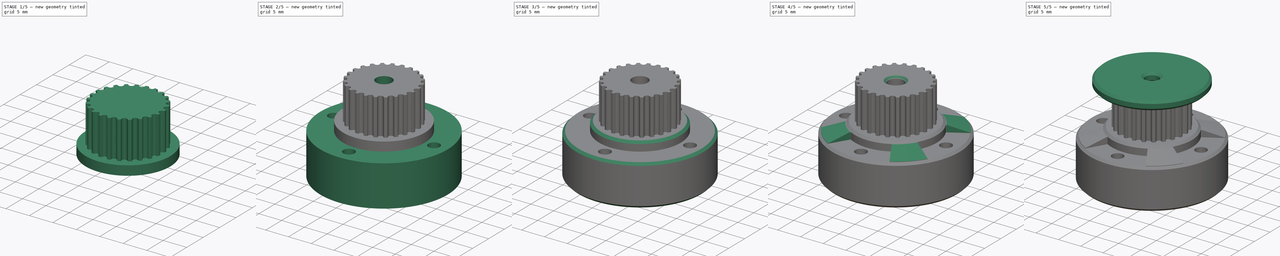
[diagram: build sequence overview — one tinted view per stage of 5, left to right]
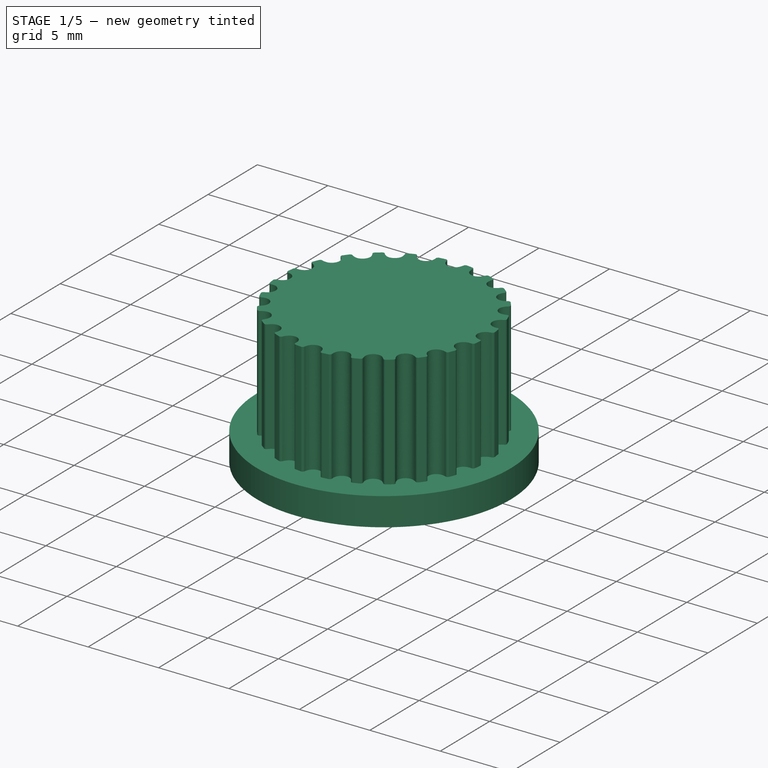
[diagram: stage 1 of 5 — iso view after this stage's code; geometry added in this stage tinted green]
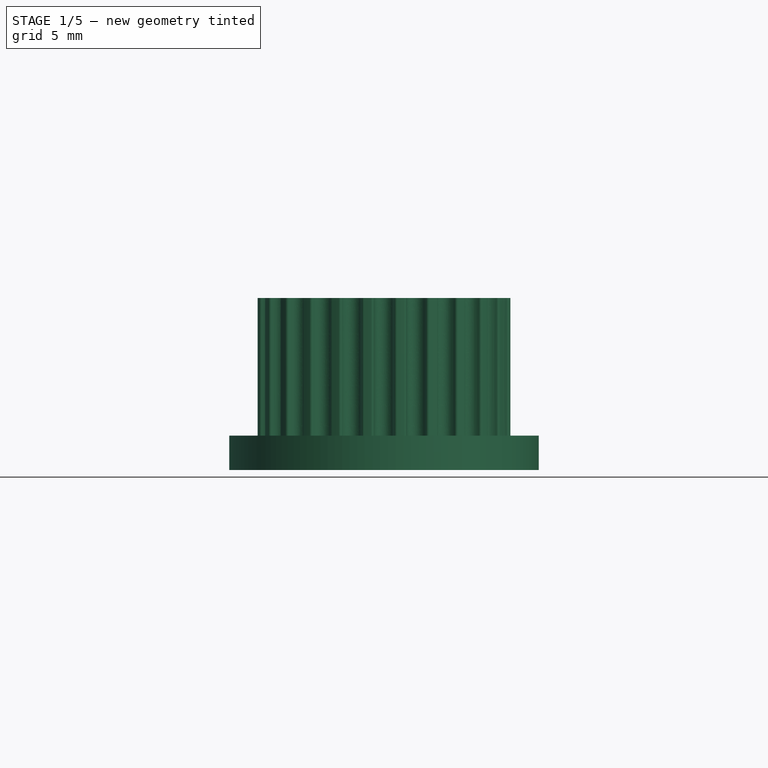
[diagram: stage 1 of 5 — front view after this stage's code; geometry added in this stage tinted green]
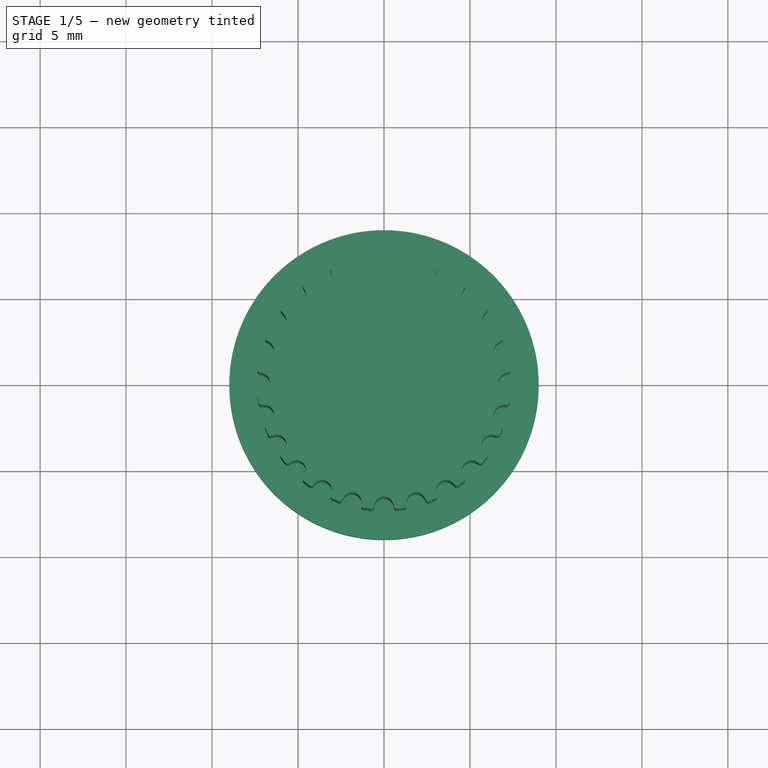
[diagram: stage 1 of 5 — top view after this stage's code; geometry added in this stage tinted green]
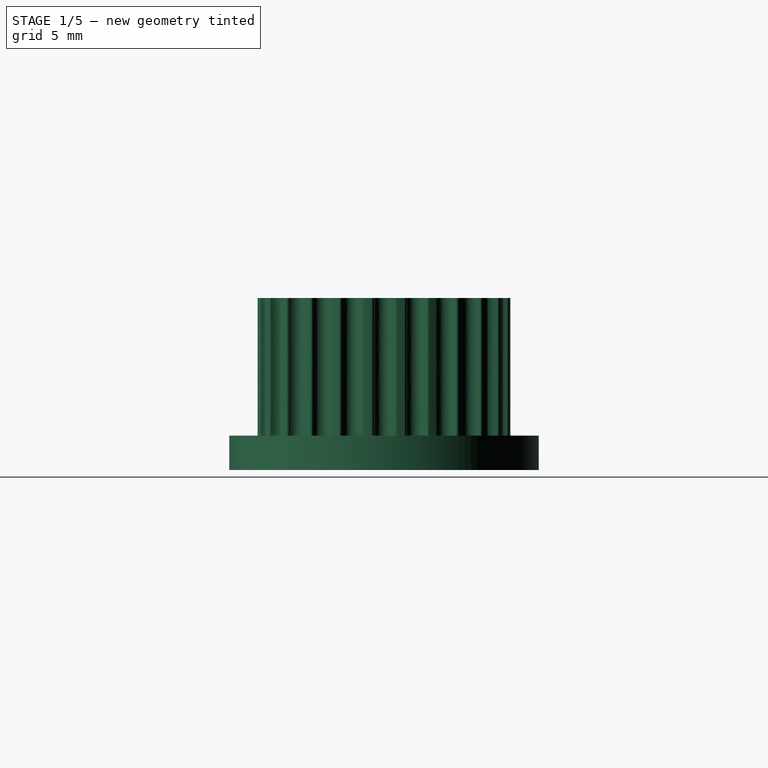
[diagram: stage 1 of 5 — right view after this stage's code; geometry added in this stage tinted green]
FCSTD DOCUMENT  (FreeCAD 1.0R39109 (Git))
Label: gt2_24T_pulley_open_to_double
License: All rights reserved
LicenseURL: https://en.wikipedia.org/wiki/All_rights_reserved
objects: Sketcher::SketchObject×8, PartDesign::Chamfer×7, PartDesign::Pad×4, PartDesign::Pocket×4, PartDesign::Body×2, Part::FeaturePython×1, PartDesign::FeatureBase×1, PartDesign::ShapeBinder×1, App::Part×1, Measure::MeasureArea×1, App::DocumentObjectGroup×1
note: 67 computed .brp shape members not serialized (recipe doc carries the construction recipe); baked Part::Feature solids carry a one-line shape summary decoded from their .brp

FEATURE [Part::FeaturePython] TimingGear  # WARN: FeaturePython — macro-defined, semantics opaque (R4)
  AttacherType = Attacher::AttachEngine3D
  h = 0.75
  height = 8
  num_teeth = 24
  offset = 0.4
  pitch = 2
  r0 = 0.555
  r1 = 1
  rs = 0.15
  type = 0
  u = 0.254
  version = 1.3.0
FEATURE [PartDesign::FeatureBase] BaseFeature
  BaseFeature = -> TimingGear
  Suppressed = false
FEATURE [Sketcher::SketchObject] Sketch
  ArcFitTolerance = 1e-06
  AttachmentSupport = -> [BaseFeature]
  FullyConstrained = true
  MakeInternals = false
  MapMode = 5
  Placement = pos=(0,0,0) rot=(1,0,0;3.14159rad)
  sketch-geometry (1):
    g0: Circle CenterX=0 CenterY=0 CenterZ=0 NormalX=0 NormalY=0 NormalZ=1 AngleXU=0 Radius=9
  constraints (2):
    c: Diameter(g0) = 18
    c: Coincident(g0,g-1)
FEATURE [PartDesign::Pad] Pad
  BaseFeature = -> BaseFeature
  Direction = (0,0,-1)
  Length = 2
  Length2 = 10
  Profile = -> Sketch
  ReferenceAxis = -> Sketch [N_Axis]
  Refine = true
  Suppressed = false
  Type = 0
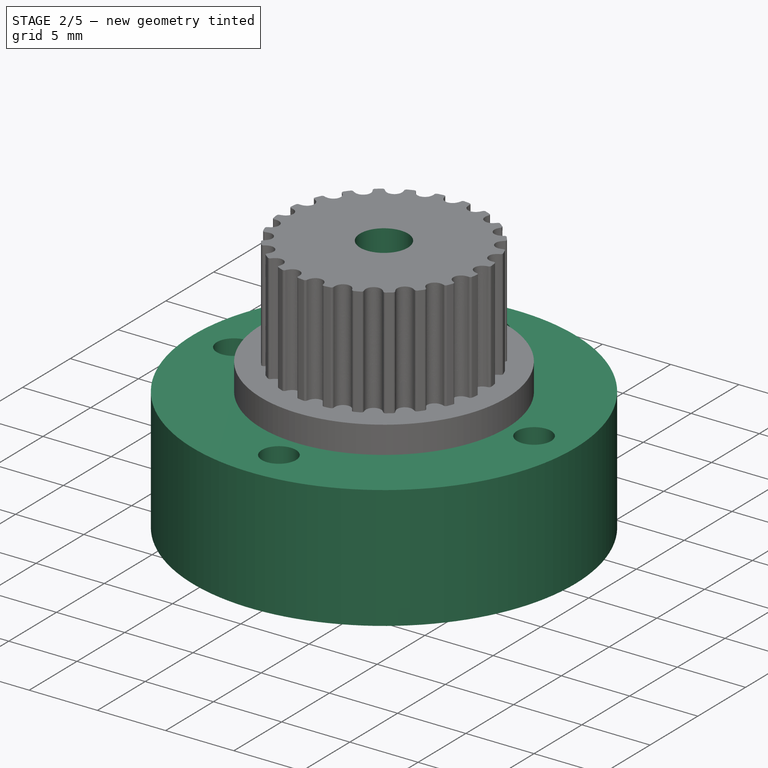
[diagram: stage 2 of 5 — iso view after this stage's code; geometry added in this stage tinted green]
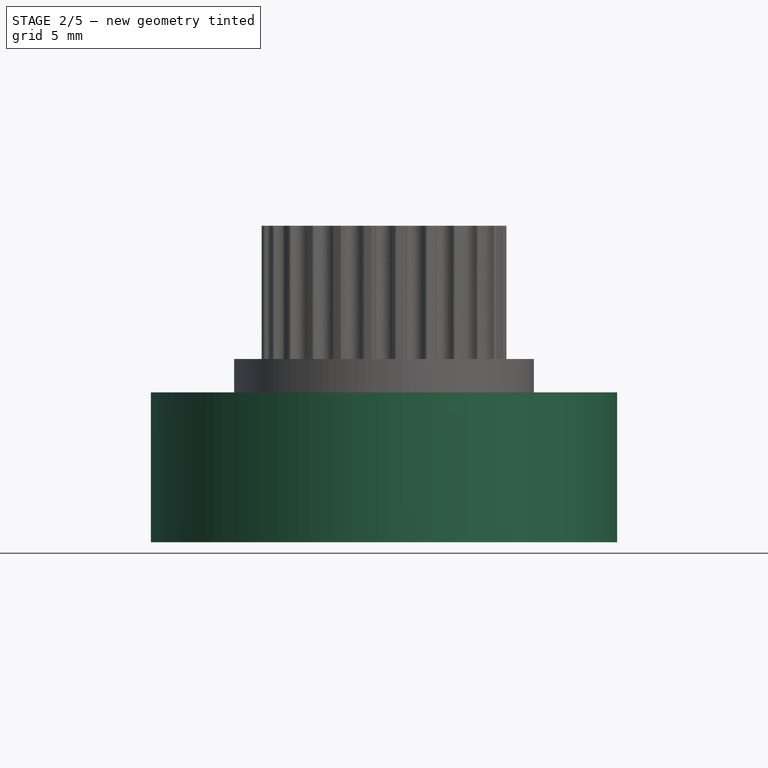
[diagram: stage 2 of 5 — front view after this stage's code; geometry added in this stage tinted green]
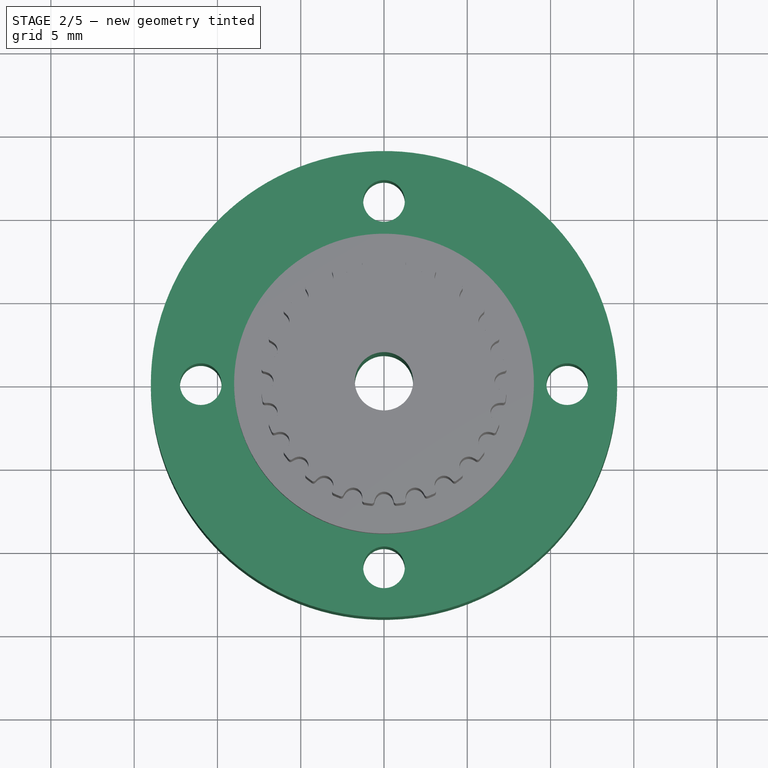
[diagram: stage 2 of 5 — top view after this stage's code; geometry added in this stage tinted green]
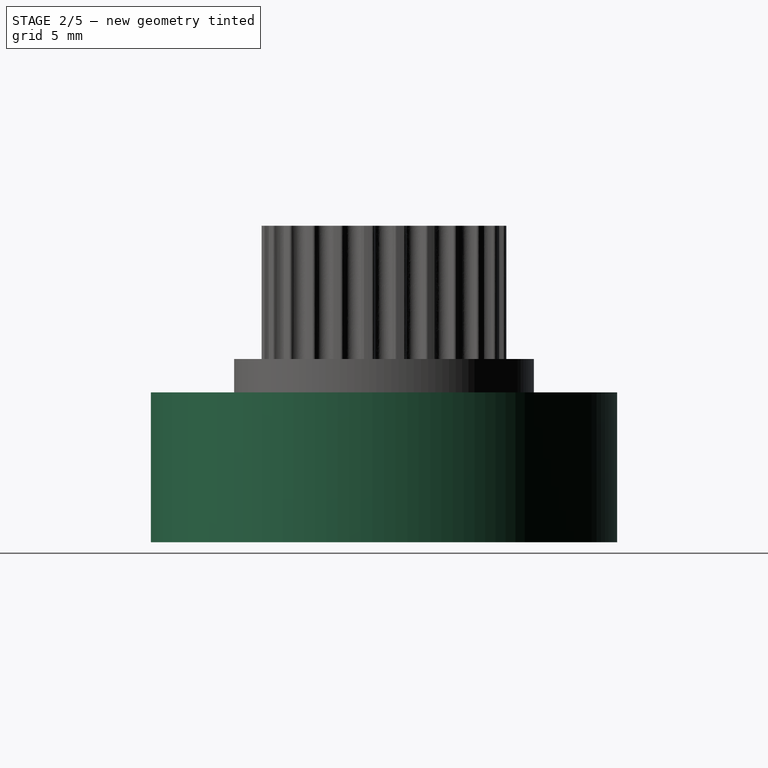
[diagram: stage 2 of 5 — right view after this stage's code; geometry added in this stage tinted green]
FEATURE [Sketcher::SketchObject] Sketch001
  ArcFitTolerance = 1e-06
  AttachmentSupport = -> [Pad]
  FullyConstrained = true
  MakeInternals = false
  MapMode = 5
  Placement = pos=(0,0,-2) rot=(1,0,0;3.14159rad)
  sketch-geometry (1):
    g0: Circle CenterX=0 CenterY=0 CenterZ=0 NormalX=0 NormalY=0 NormalZ=1 AngleXU=0 Radius=14
  constraints (2):
    c: Diameter(g0) = 28
    c: Coincident(g0,g-1)
FEATURE [PartDesign::Pad] Pad001
  BaseFeature = -> Pad
  Direction = (0,0,-1)
  Length = 9
  Length2 = 10
  Profile = -> Sketch001
  ReferenceAxis = -> Sketch001 [N_Axis]
  Refine = true
  Suppressed = false
  Type = 0
FEATURE [Sketcher::SketchObject] Sketch002
  ArcFitTolerance = 1e-06
  AttachmentSupport = -> [Pad001]
  FullyConstrained = false
  MakeInternals = false
  MapMode = 5
  Placement = pos=(0,0,-11) rot=(1,0,0;3.14159rad)
  sketch-geometry (7):
    g0: Circle [constr] CenterX=0 CenterY=5.078e-13 CenterZ=0 NormalX=0 NormalY=0 NormalZ=1 AngleXU=0 Radius=11
    g1: LineSegment [constr] StartX=0 StartY=5.078e-13 StartZ=0 EndX=0 EndY=11 EndZ=0
    g2: Circle CenterX=0 CenterY=11 CenterZ=0 NormalX=0 NormalY=0 NormalZ=1 AngleXU=0 Radius=5.092e-13
    g3: Circle CenterX=0 CenterY=11 CenterZ=0 NormalX=0 NormalY=0 NormalZ=1 AngleXU=0 Radius=1.25
    g4: Circle CenterX=-11 CenterY=0 CenterZ=0 NormalX=0 NormalY=0 NormalZ=1 AngleXU=0 Radius=1.25
    g5: Circle CenterX=0 CenterY=-11 CenterZ=0 NormalX=0 NormalY=0 NormalZ=1 AngleXU=0 Radius=1.25
    g6: Circle CenterX=11 CenterY=0 CenterZ=0 NormalX=0 NormalY=0 NormalZ=1 AngleXU=0 Radius=1.25
  constraints (12):
    c: Diameter(g0) = 22
    c: Coincident(g0,g-1)
    c: Coincident(g1,g0)
    c: PointOnObject(g1,g0)
    c: Vertical(g1)
    c: Coincident(g2,g1)
    c: Tangent(g2,g0)
    c: Coincident(g3,g1)
    c: Diameter(g3) = 2.5
    c: Diameter(g4) = 2.5
    c: Diameter(g5) = 2.5
    c: Diameter(g6) = 2.5
FEATURE [PartDesign::Pocket] Pocket
  BaseFeature = -> Pad001
  Direction = (0,0,1)
  Length = 19
  Length2 = 5
  Profile = -> Sketch002
  ReferenceAxis = -> Sketch002 [N_Axis]
  Refine = true
  Suppressed = false
  Type = 0
FEATURE [Sketcher::SketchObject] Sketch003
  ArcFitTolerance = 1e-06
  AttachmentSupport = -> [Pocket]
  FullyConstrained = true
  MakeInternals = false
  MapMode = 5
  Placement = pos=(0,0,-11) rot=(1,0,0;3.14159rad)
  sketch-geometry (1):
    g0: Circle CenterX=0 CenterY=0 CenterZ=0 NormalX=0 NormalY=0 NormalZ=1 AngleXU=0 Radius=6
  constraints (2):
    c: Coincident(g0,g-1)
    c: Diameter(g0) = 12
FEATURE [PartDesign::Pocket] Pocket001
  BaseFeature = -> Pocket
  Direction = (0,0,1)
  Length = 5
  Length2 = 5
  Profile = -> Sketch003
  ReferenceAxis = -> Sketch003 [N_Axis]
  Refine = true
  Suppressed = false
  Type = 0
FEATURE [Sketcher::SketchObject] Sketch004
  ArcFitTolerance = 1e-06
  AttachmentSupport = -> [Pocket001]
  FullyConstrained = true
  MakeInternals = false
  MapMode = 5
  Placement = pos=(0,0,-6) rot=(1,0,0;3.14159rad)
  sketch-geometry (1):
    g0: Circle CenterX=0 CenterY=0 CenterZ=0 NormalX=0 NormalY=0 NormalZ=1 AngleXU=0 Radius=1.75
  constraints (2):
    c: Coincident(g0,g-1)
    c: Diameter(g0) = 3.5
FEATURE [PartDesign::Pocket] Pocket002
  BaseFeature = -> Pocket001
  Direction = (0,0,1)
  Length = 20
  Length2 = 5
  Profile = -> Sketch004
  ReferenceAxis = -> Sketch004 [N_Axis]
  Refine = true
  Suppressed = false
  Type = 0
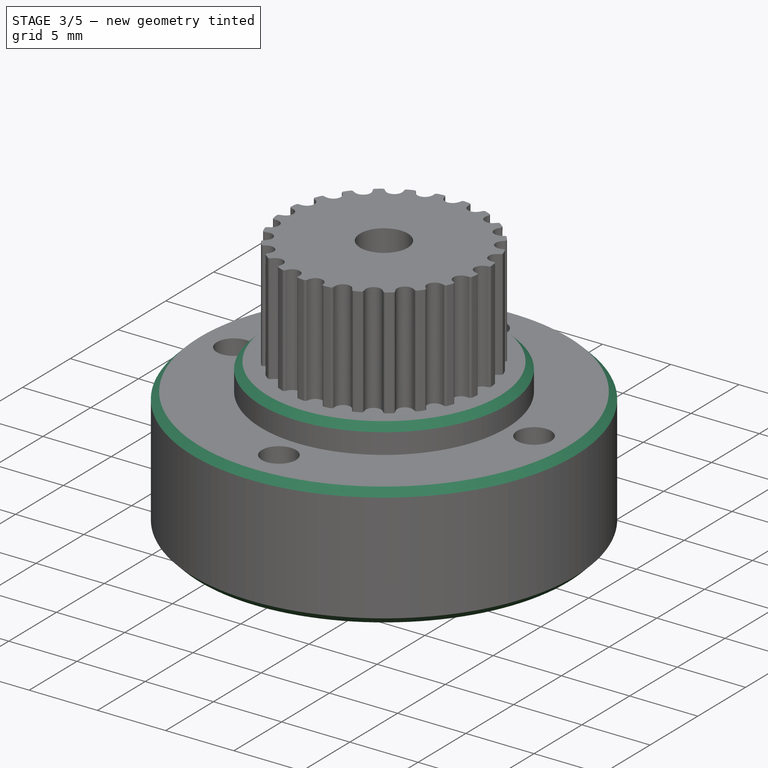
[diagram: stage 3 of 5 — iso view after this stage's code; geometry added in this stage tinted green]
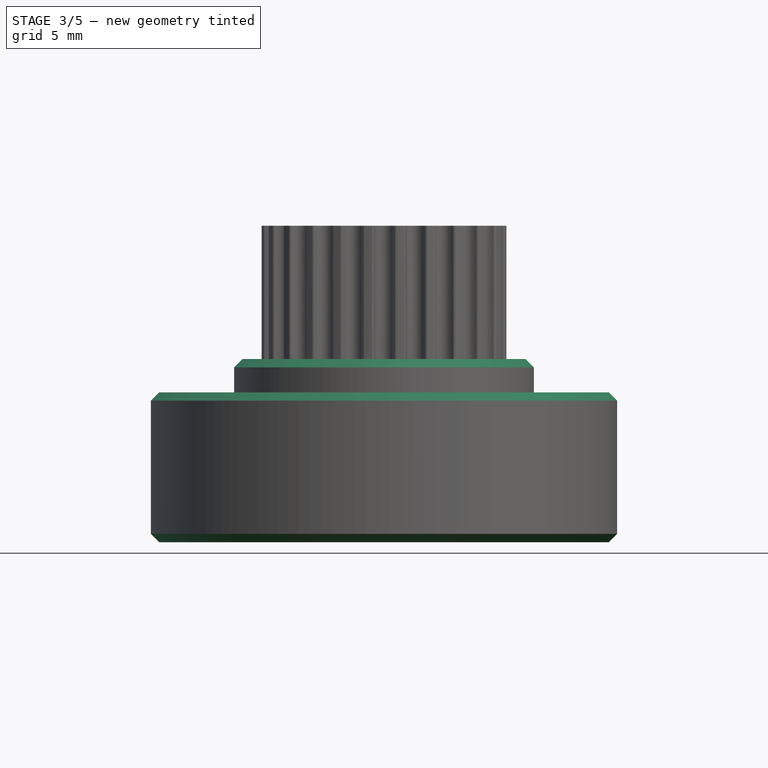
[diagram: stage 3 of 5 — front view after this stage's code; geometry added in this stage tinted green]
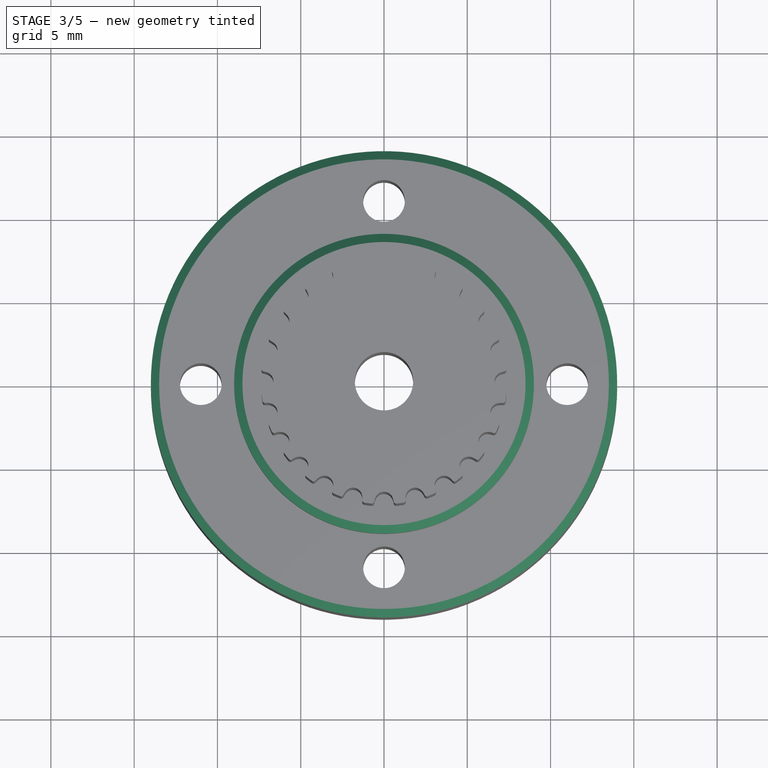
[diagram: stage 3 of 5 — top view after this stage's code; geometry added in this stage tinted green]
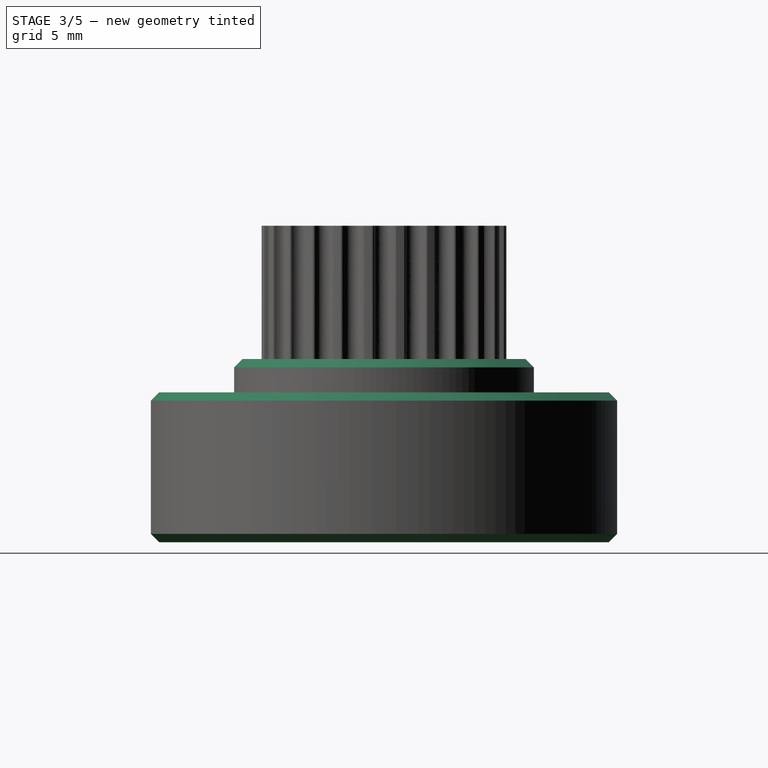
[diagram: stage 3 of 5 — right view after this stage's code; geometry added in this stage tinted green]
FEATURE [PartDesign::Chamfer] Chamfer
  Angle = 45
  Base = -> Pocket002 [Edge437]
  BaseFeature = -> Pocket002
  ChamferType = 0
  FlipDirection = false
  Refine = true
  Size = 4.2
  Size2 = 1
  SupportTransform = false
  Suppressed = false
  UseAllEdges = false
FEATURE [PartDesign::Chamfer] Chamfer001
  Angle = 45
  Base = -> Chamfer [Edge441]
  BaseFeature = -> Chamfer
  ChamferType = 0
  FlipDirection = false
  Refine = true
  Size = 0.5
  Size2 = 1
  SupportTransform = false
  Suppressed = false
  UseAllEdges = false
FEATURE [PartDesign::Chamfer] Chamfer002
  Angle = 45
  Base = -> Chamfer001 [Edge439,Edge447]
  BaseFeature = -> Chamfer001
  ChamferType = 0
  FlipDirection = false
  Refine = true
  Size = 0.5
  Size2 = 1
  SupportTransform = false
  Suppressed = false
  UseAllEdges = false
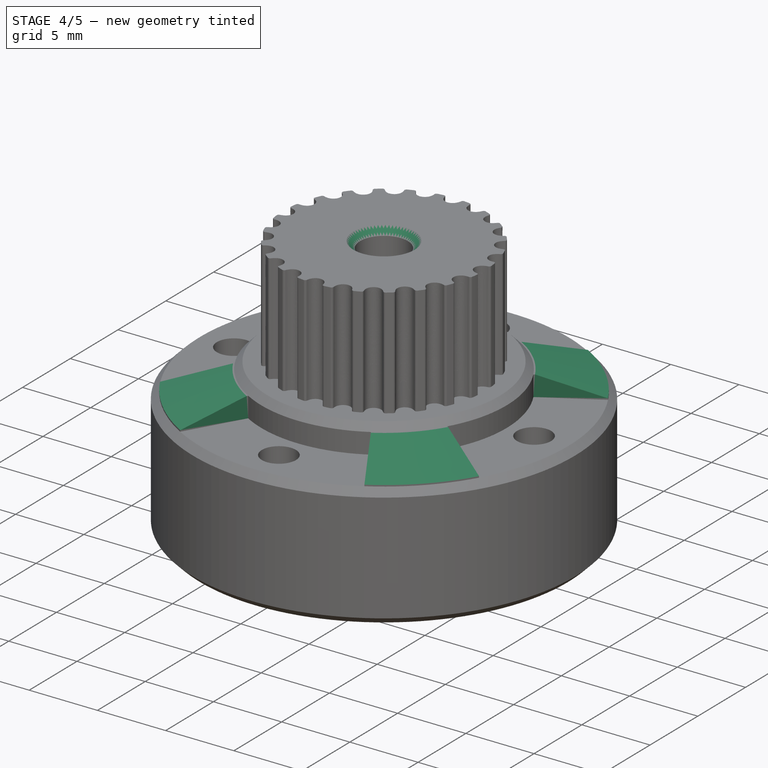
[diagram: stage 4 of 5 — iso view after this stage's code; geometry added in this stage tinted green]
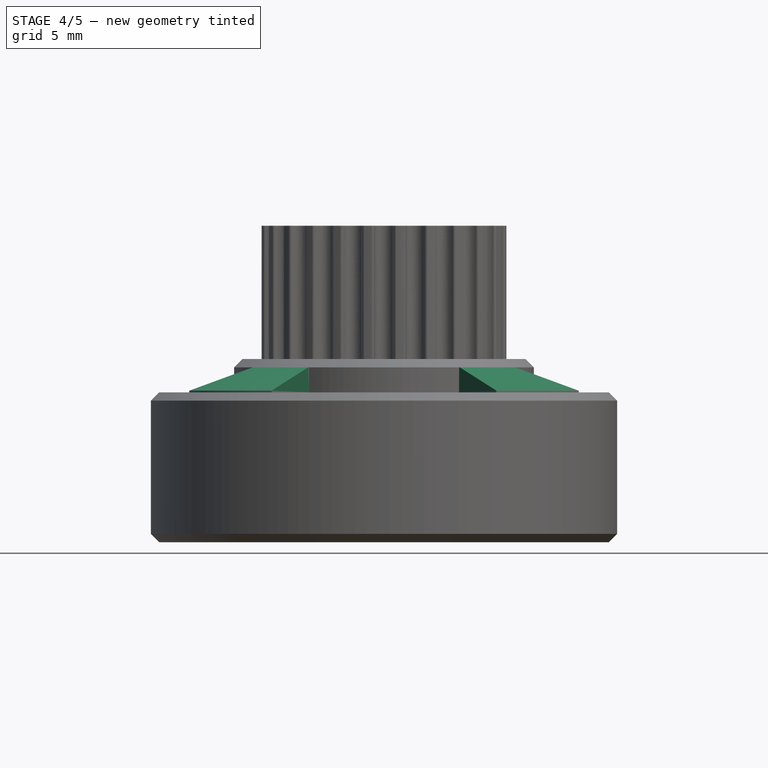
[diagram: stage 4 of 5 — front view after this stage's code; geometry added in this stage tinted green]
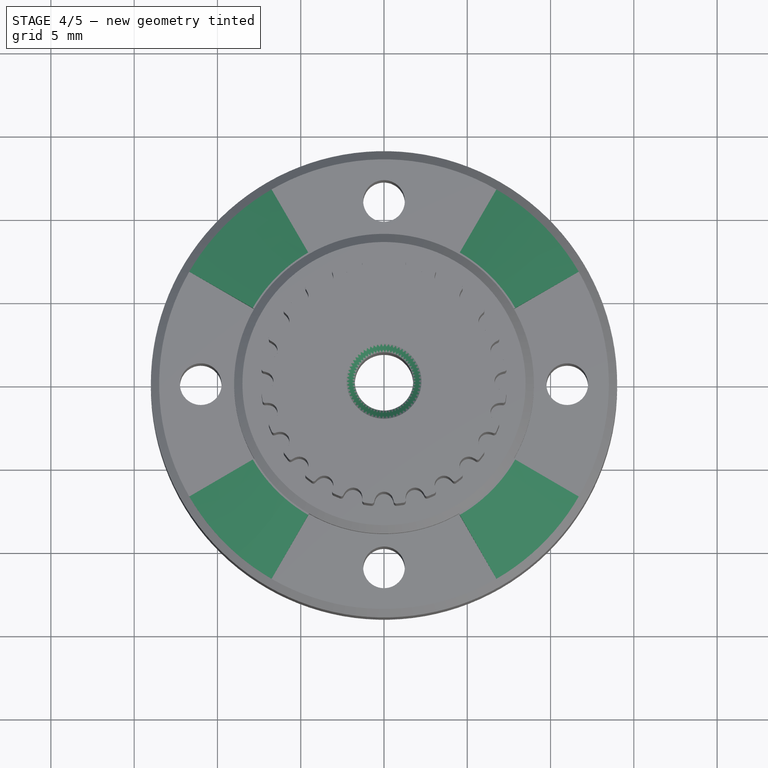
[diagram: stage 4 of 5 — top view after this stage's code; geometry added in this stage tinted green]
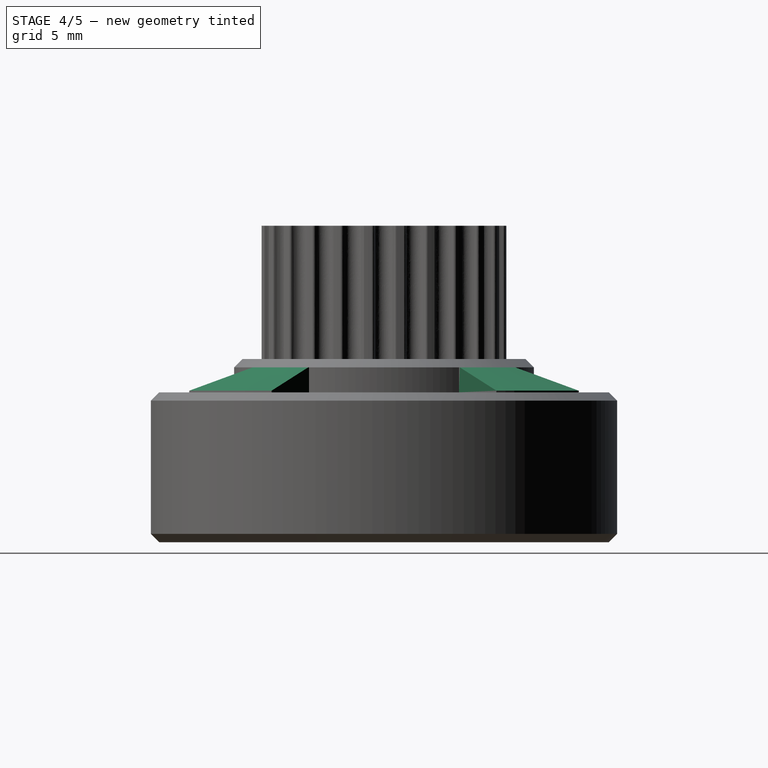
[diagram: stage 4 of 5 — right view after this stage's code; geometry added in this stage tinted green]
FEATURE [PartDesign::Chamfer] Chamfer003
  Angle = 45
  Base = -> Chamfer002 [Edge22,Edge15,Edge17,Edge15,Edge9,Edge11]
  BaseFeature = -> Chamfer002
  ChamferType = 0
  FlipDirection = false
  Refine = true
  Size = 0.5
  Size2 = 1
  SupportTransform = false
  Suppressed = false
  UseAllEdges = false
FEATURE [PartDesign::Chamfer] Chamfer004
  Angle = 45
  Base = -> Chamfer003 [Edge473]
  BaseFeature = -> Chamfer003
  ChamferType = 0
  FlipDirection = false
  Refine = true
  Size = 0.5
  Size2 = 1
  SupportTransform = false
  Suppressed = false
  UseAllEdges = false
FEATURE [PartDesign::Body] Body001
  AllowCompound = false
  Group = -> [CopyChamfer004,Sketch005,Pad002,Sketch006,Pocket003,Chamfer005]
  Origin = -> Origin001
  Tip = -> Chamfer005
FEATURE [Sketcher::SketchObject] Sketch007
  ArcFitTolerance = 1e-06
  AttachmentSupport = -> [Chamfer004]
  ExternalGeometry = -> [Chamfer004]
  FullyConstrained = true
  MakeInternals = false
  MapMode = 5
  Placement = pos=(0,0,-2) rot=(0,0,1;0rad)
  sketch-geometry (25):
    g0: Circle [constr] CenterX=0 CenterY=0 CenterZ=0 NormalX=0 NormalY=0 NormalZ=1 AngleXU=0 Radius=9
    g1: LineSegment [constr] StartX=0 StartY=0 StartZ=0 EndX=7.79423 EndY=-4.5 EndZ=0
    g2: LineSegment [constr] StartX=0 StartY=0 StartZ=0 EndX=4.5 EndY=-7.79423 EndZ=0
    g3: LineSegment StartX=7.79423 StartY=-4.5 StartZ=0 EndX=11.6913 EndY=-6.75 EndZ=0
    g4: LineSegment StartX=4.5 StartY=-7.79423 StartZ=0 EndX=6.75 EndY=-11.6913 EndZ=0
    g5: LineSegment [constr] StartX=0 StartY=0 StartZ=0 EndX=7.79423 EndY=4.5 EndZ=0
    g6: LineSegment [constr] StartX=0 StartY=0 StartZ=0 EndX=4.5 EndY=7.79423 EndZ=0
    g7: LineSegment [constr] StartX=0 StartY=0 StartZ=0 EndX=-4.5 EndY=7.79423 EndZ=0
    g8: LineSegment [constr] StartX=0 StartY=0 StartZ=0 EndX=-7.79423 EndY=4.5 EndZ=0
    g9: LineSegment [constr] StartX=0 StartY=0 StartZ=0 EndX=-7.79423 EndY=-4.5 EndZ=0
    g10: LineSegment [constr] StartX=0 StartY=0 StartZ=0 EndX=-4.5 EndY=-7.79423 EndZ=0
    g11: LineSegment StartX=7.79423 StartY=4.5 StartZ=0 EndX=11.6913 EndY=6.75 EndZ=0
    g12: LineSegment StartX=4.5 StartY=7.79423 StartZ=0 EndX=6.75 EndY=11.6913 EndZ=0
    g13: LineSegment StartX=-4.5 StartY=7.79423 StartZ=0 EndX=-6.75 EndY=11.6913 EndZ=0
    g14: LineSegment StartX=-7.79423 StartY=4.5 StartZ=0 EndX=-11.6913 EndY=6.75 EndZ=0
    g15: LineSegment StartX=-7.79423 StartY=-4.5 StartZ=0 EndX=-11.6913 EndY=-6.75 EndZ=0
    g16: LineSegment StartX=-4.5 StartY=-7.79423 StartZ=0 EndX=-6.75 EndY=-11.6913 EndZ=0
    g17: ArcOfCircle CenterX=0 CenterY=0 CenterZ=0 NormalX=0 NormalY=0 NormalZ=1 AngleXU=0 Radius=9 StartAngle=0.523599 EndAngle=1.0472
    g18: ArcOfCircle CenterX=0 CenterY=0 CenterZ=0 NormalX=0 NormalY=0 NormalZ=1 AngleXU=0 Radius=9 StartAngle=2.0944 EndAngle=2.61799
    g19: ArcOfCircle CenterX=0 CenterY=0 CenterZ=0 NormalX=0 NormalY=0 NormalZ=1 AngleXU=0 Radius=9 StartAngle=3.66519 EndAngle=4.18879
    g20: ArcOfCircle CenterX=0 CenterY=0 CenterZ=0 NormalX=0 NormalY=0 NormalZ=1 AngleXU=0 Radius=9 StartAngle=5.23599 EndAngle=5.75959
    g21: ArcOfCircle CenterX=0 CenterY=0 CenterZ=0 NormalX=0 NormalY=0 NormalZ=1 AngleXU=0 Radius=13.5 StartAngle=0.523599 EndAngle=1.0472
    g22: ArcOfCircle CenterX=0 CenterY=0 CenterZ=0 NormalX=0 NormalY=0 NormalZ=1 AngleXU=0 Radius=13.5 StartAngle=2.0944 EndAngle=2.61799
    g23: ArcOfCircle CenterX=0 CenterY=0 CenterZ=0 NormalX=0 NormalY=0 NormalZ=1 AngleXU=0 Radius=13.5 StartAngle=3.66519 EndAngle=4.18879
    g24: ArcOfCircle CenterX=0 CenterY=0 CenterZ=0 NormalX=0 NormalY=0 NormalZ=1 AngleXU=0 Radius=13.5 StartAngle=5.23599 EndAngle=5.75959
  constraints (80):
    c: Coincident(g0,g-1)
    c: Diameter(g0) = 18
    c: Coincident(g1,g0)
    c: PointOnObject(g1,g0)
    c: Angle(g1,g-1) = 0.523599
    c: Coincident(g2,g0)
    c: PointOnObject(g2,g0)
    c: Angle(g2,g1) = 0.523599
    c: Coincident(g3,g1)
    c: PointOnObject(g3,g-4)
    c: Parallel(g1,g3)
    c: Coincident(g4,g2)
    c: PointOnObject(g4,g-4)
    c: Parallel(g2,g4)
    c: Coincident(g5,g0)
    c: PointOnObject(g5,g0)
    c: Coincident(g6,g0)
    c: PointOnObject(g6,g0)
    c: Coincident(g7,g0)
    c: PointOnObject(g7,g0)
    c: Coincident(g8,g0)
    c: PointOnObject(g8,g0)
    c: Coincident(g9,g0)
    c: PointOnObject(g9,g0)
    c: Coincident(g10,g0)
    c: PointOnObject(g10,g0)
    c: Angle(g-1,g5) = 0.523599
    c: Angle(g5,g6) = 0.523599
    c: Angle(g6,g7) = 1.0472
    c: Angle(g7,g8) = 0.523599
    c: Angle(g8,g9) = 1.0472
    c: Angle(g9,g10) = 0.523599
    c: Coincident(g11,g5)
    c: PointOnObject(g11,g-4)
    c: Coincident(g12,g6)
    c: PointOnObject(g12,g-4)
    c: Coincident(g13,g7)
    c: PointOnObject(g13,g-4)
    c: Coincident(g14,g8)
    c: PointOnObject(g14,g-4)
    c: Coincident(g15,g9)
    c: PointOnObject(g15,g-4)
    c: Coincident(g16,g10)
    c: PointOnObject(g16,g-4)
    c: Parallel(g5,g11)
    c: Parallel(g6,g12)
    c: Parallel(g7,g13)
    c: Parallel(g8,g14)
    c: Parallel(g9,g15)
    c: Parallel(g10,g16)
    c: Coincident(g17,g0)
    c: Coincident(g20,g1)
    c: PointOnObject(g17,g5)
    c: Equal(g17,g18)
    c: PointOnObject(g17,g6)
    c: PointOnObject(g18,g7)
    c: Coincident(g17,g18)
    c: Equal(g18,g19)
    c: PointOnObject(g18,g8)
    c: PointOnObject(g19,g9)
    c: Coincident(g18,g19)
    c: Equal(g19,g20)
    c: PointOnObject(g19,g10)
    c: PointOnObject(g20,g2)
    c: Coincident(g19,g20)
    c: Coincident(g21,g0)
    c: Coincident(g21,g11)
    c: PointOnObject(g24,g3)
    c: Equal(g21,g22)
    c: PointOnObject(g21,g12)
    c: PointOnObject(g22,g13)
    c: Coincident(g21,g22)
    c: Equal(g22,g23)
    c: PointOnObject(g22,g14)
    c: PointOnObject(g23,g15)
    c: Coincident(g22,g23)
    c: Equal(g23,g24)
    c: PointOnObject(g23,g16)
    c: PointOnObject(g24,g4)
    c: Coincident(g23,g24)
FEATURE [PartDesign::Pad] Pad003
  BaseFeature = -> Chamfer004
  Direction = (0,0,1)
  Length = 1.5
  Length2 = 10
  Profile = -> Sketch007
  ReferenceAxis = -> Sketch007 [N_Axis]
  Refine = true
  Suppressed = false
  Type = 0
FEATURE [PartDesign::Chamfer] Chamfer006
  Angle = 45
  Base = -> Pad003 [Edge453,Edge471,Edge465,Edge459]
  BaseFeature = -> Pad003
  ChamferType = 1
  FlipDirection = false
  Refine = true
  Size = 4.4
  Size2 = 1.4
  SupportTransform = false
  Suppressed = false
  UseAllEdges = false
FEATURE [PartDesign::Body] Body
  AllowCompound = false
  BaseFeature = -> TimingGear
  Group = -> [BaseFeature,Sketch,Pad,Sketch001,Pad001,Sketch002,Pocket,Sketch003,Pocket001,Sketch004,Pocket002,Chamfer,Chamfer001,Chamfer002,Chamfer003,Chamfer004,Sketch007,Pad003,Chamfer006]
  Origin = -> Origin
  Tip = -> Chamfer006
FEATURE [App::Part] Part
  Group = -> [TimingGear,Body,Body001]
  Origin = -> Origin002
FEATURE [Measure::MeasureArea] Area  label="Area: 4.01 cm^2"
  Area = 401.338
  Elements = -> [Part]
FEATURE [App::DocumentObjectGroup] Measurements
  Group = -> [Area]
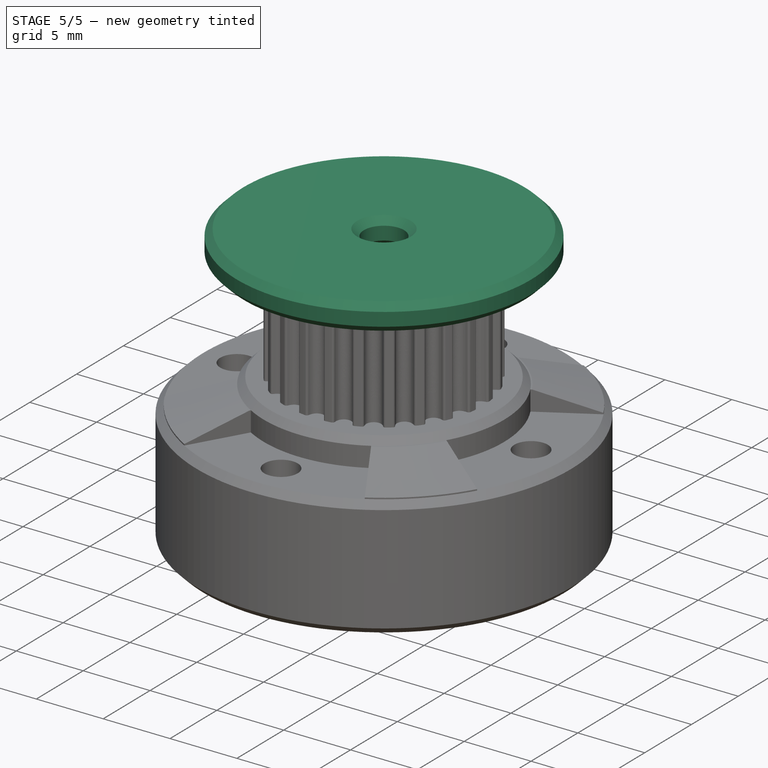
[diagram: stage 5 of 5 — iso view after this stage's code; geometry added in this stage tinted green]
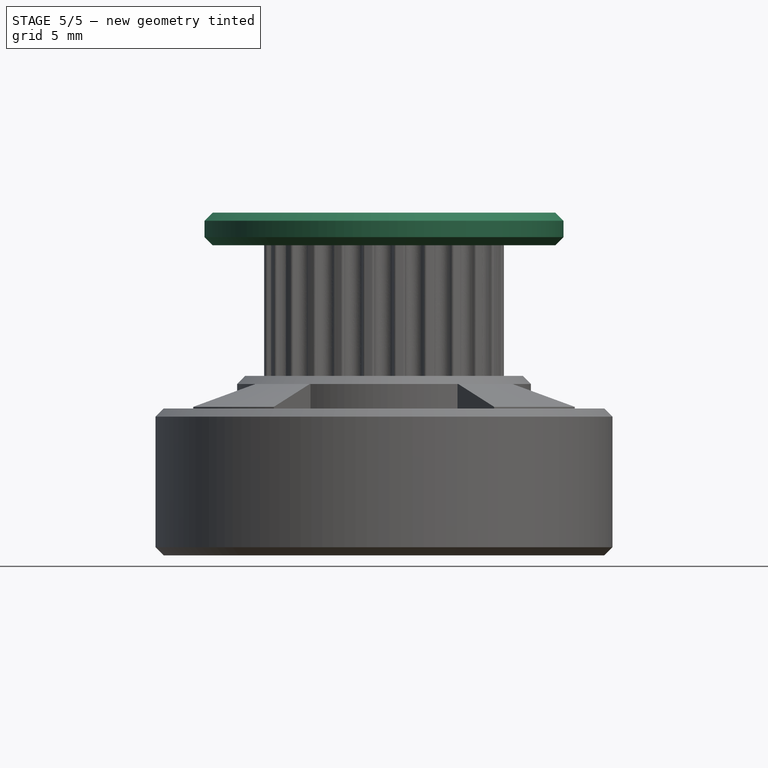
[diagram: stage 5 of 5 — front view after this stage's code; geometry added in this stage tinted green]
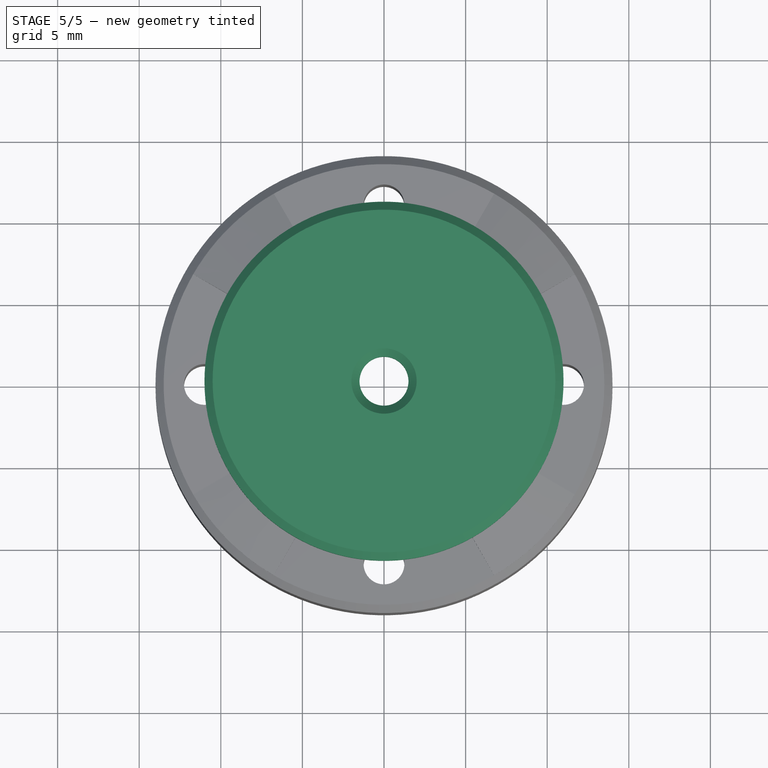
[diagram: stage 5 of 5 — top view after this stage's code; geometry added in this stage tinted green]
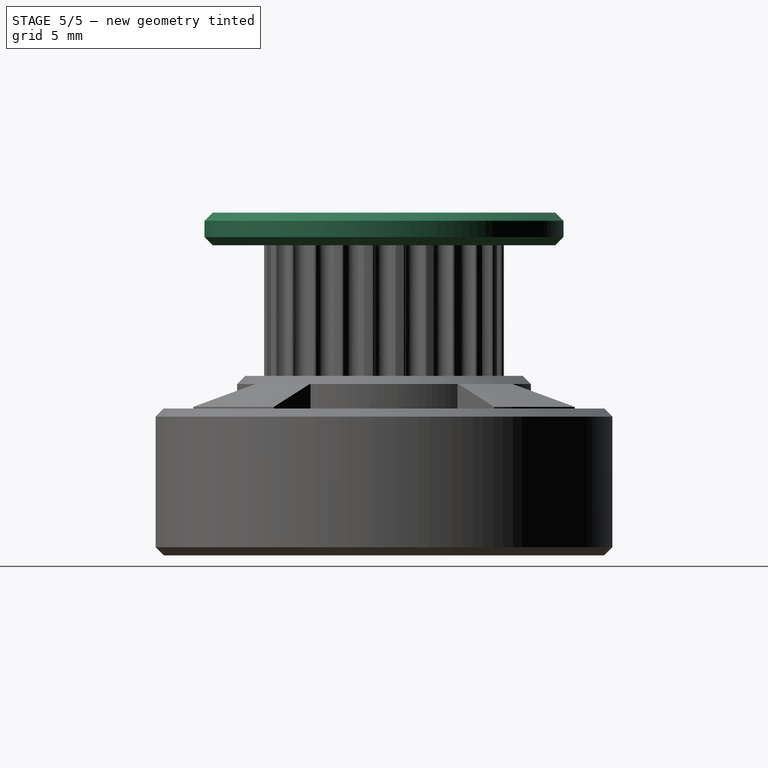
[diagram: stage 5 of 5 — right view after this stage's code; geometry added in this stage tinted green]
FEATURE [PartDesign::ShapeBinder] CopyChamfer004
  TraceSupport = false
FEATURE [Sketcher::SketchObject] Sketch005
  ArcFitTolerance = 1e-06
  AttachmentSupport = -> [CopyChamfer004]
  FullyConstrained = true
  MakeInternals = false
  MapMode = 5
  Placement = pos=(0,0,8) rot=(0,0,1;0rad)
  sketch-geometry (1):
    g0: Circle CenterX=0 CenterY=0 CenterZ=0 NormalX=0 NormalY=0 NormalZ=1 AngleXU=0 Radius=11
  constraints (2):
    c: Diameter(g0) = 22
    c: Coincident(g0,g-1)
FEATURE [PartDesign::Pad] Pad002
  Direction = (0,0,1)
  Length = 2
  Length2 = 10
  Profile = -> Sketch005
  ReferenceAxis = -> Sketch005 [N_Axis]
  Refine = true
  Suppressed = false
  Type = 0
FEATURE [Sketcher::SketchObject] Sketch006
  ArcFitTolerance = 1e-06
  AttachmentSupport = -> [Pad002]
  FullyConstrained = true
  MakeInternals = false
  MapMode = 5
  Placement = pos=(0,0,10) rot=(0,0,1;0rad)
  sketch-geometry (1):
    g0: Circle CenterX=0 CenterY=0 CenterZ=0 NormalX=0 NormalY=0 NormalZ=1 AngleXU=0 Radius=1.5
  constraints (2):
    c: Diameter(g0) = 3
    c: Coincident(g0,g-1)
FEATURE [PartDesign::Pocket] Pocket003
  BaseFeature = -> Pad002
  Direction = (0,0,-1)
  Length = 15
  Length2 = 5
  Profile = -> Sketch006
  ReferenceAxis = -> Sketch006 [N_Axis]
  Refine = true
  Suppressed = false
  Type = 0
FEATURE [PartDesign::Chamfer] Chamfer005
  Angle = 45
  Base = -> Pocket003 [Edge2,Edge3,Edge5,Edge4]
  BaseFeature = -> Pocket003
  ChamferType = 0
  FlipDirection = false
  Refine = true
  Size = 0.5
  Size2 = 1
  SupportTransform = false
  Suppressed = false
  UseAllEdges = false
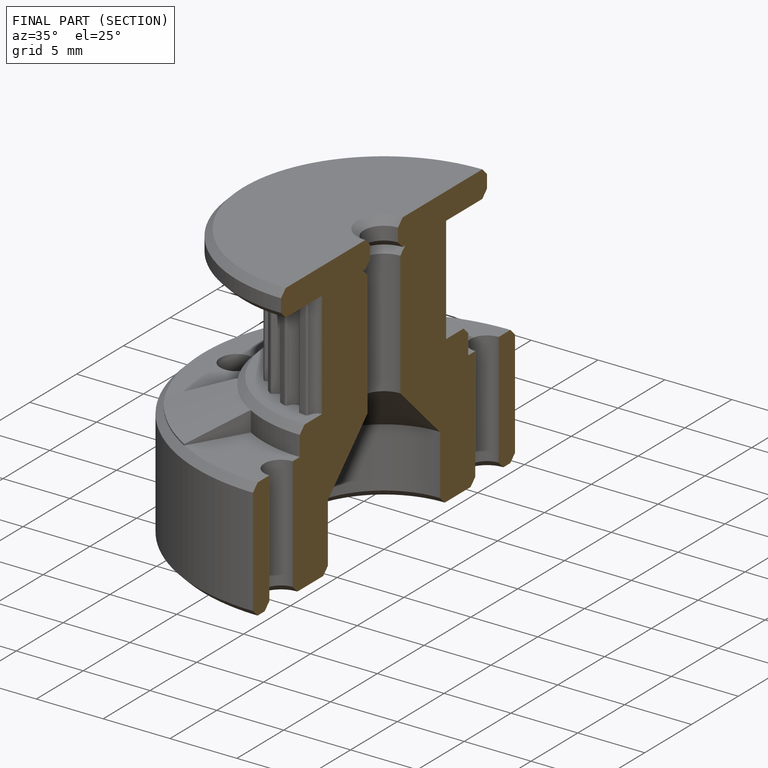
[diagram: finished part — half-section view (interior)]
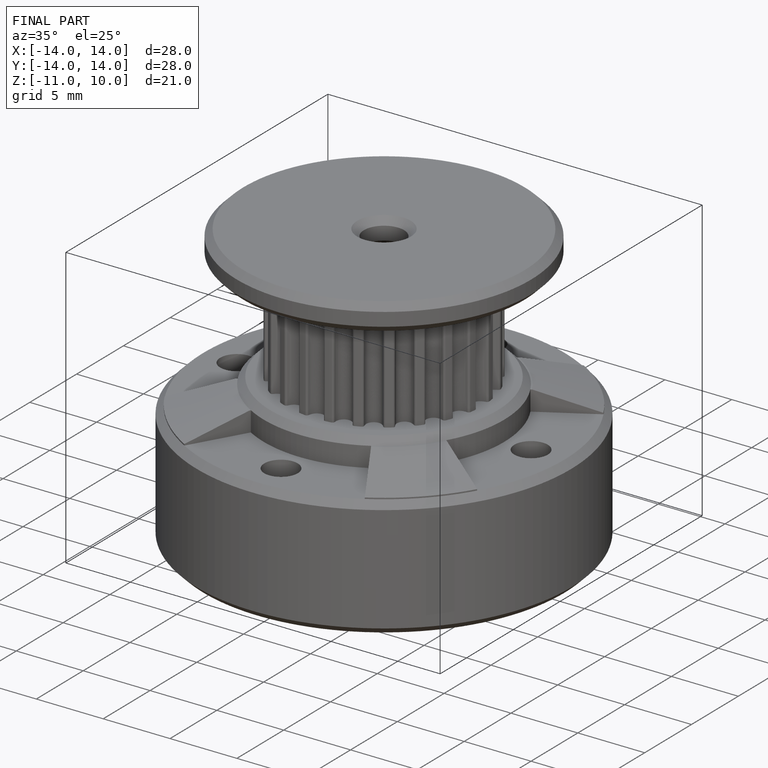
[diagram: finished part — iso view with bounding-box wireframe]
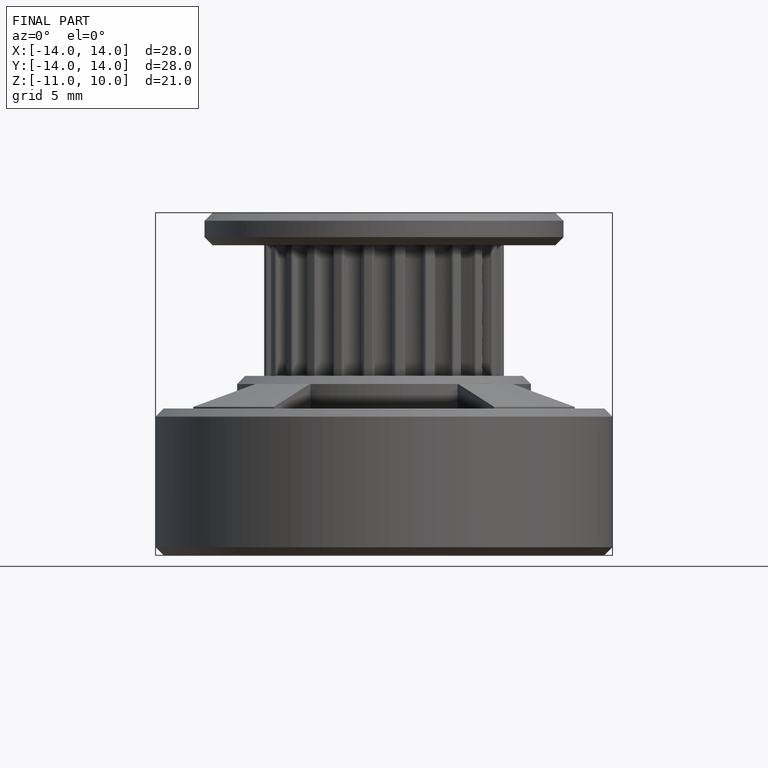
[diagram: finished part — front view with bounding-box wireframe]
